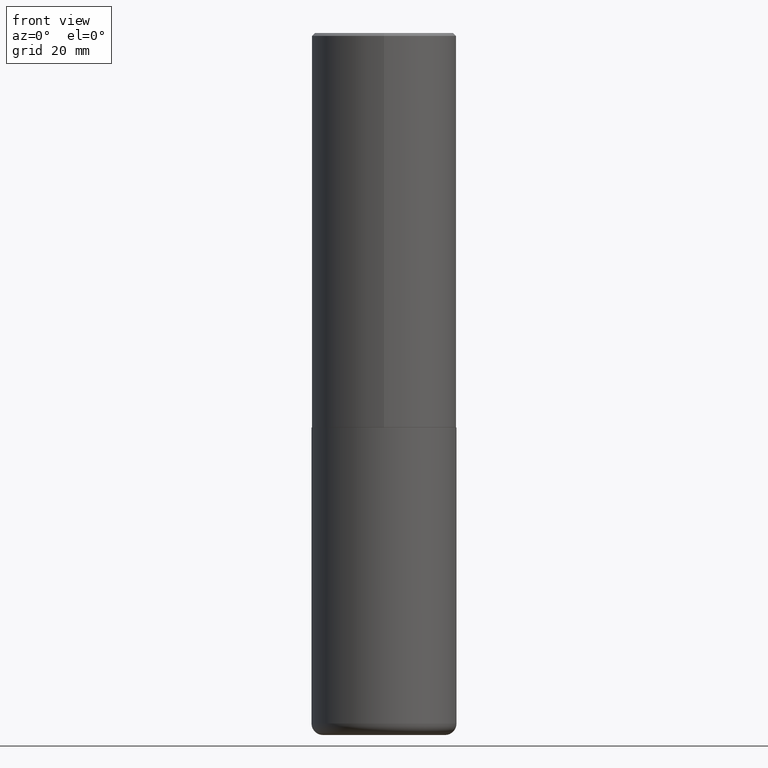
[diagram: clean part render]
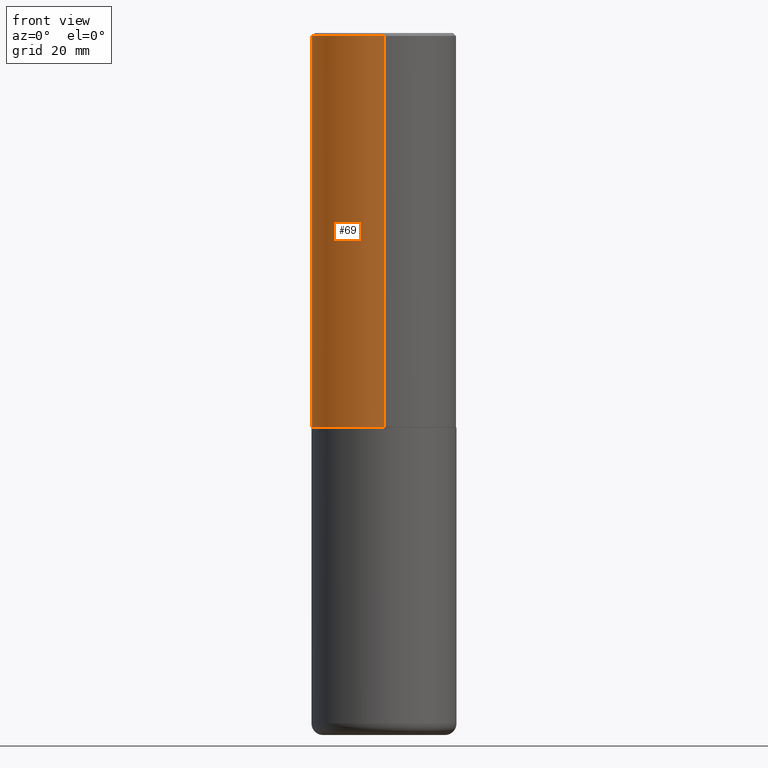
[diagram: same view with one face highlighted and labeled with its STEP entity id]
A machine part, front view. The second image highlights one B-rep face of the part: STEP entity #69.
In plain terms, the highlighted cylindrical surface (partial cylindrical patch) has radius 12.5006 mm, axis along (-0, 0, 1).
Its self-contained STEP definition (entity closure, byte-faithful):
#1 = LINE ( 'NONE', #129, #92 ) ;
#4 = VECTOR ( 'NONE', #287, 39.37007874015748143 ) ;
#44 = DIRECTION ( 'NONE',  ( -2.447117958567619178E-29, 3.489119658767506053E-15, 1.000000000000000000 ) ) ;
#46 = AXIS2_PLACEMENT_3D ( 'NONE', #350, #413, #115 ) ;
#53 = EDGE_CURVE ( 'NONE', #204, #135, #412, .T. ) ;
#69 = ADVANCED_FACE ( 'NONE', ( #407 ), #251, .T. ) ;
#81 = ORIENTED_EDGE ( 'NONE', *, *, #167, .F. ) ;
#92 = VECTOR ( 'NONE', #165, 39.37007874015748143 ) ;
#115 = DIRECTION ( 'NONE',  ( -6.982962677686265922E-15, -1.000000000000000000, 3.489119658767506053E-15 ) ) ;
#120 = AXIS2_PLACEMENT_3D ( 'NONE', #266, #403, #396 ) ;
#129 = CARTESIAN_POINT ( 'NONE',  ( 3.496936074043333291E-15, 0.4921500000000000874, -1.717170240062428491E-15 ) ) ;
#135 = VERTEX_POINT ( 'NONE', #258 ) ;
#137 = CARTESIAN_POINT ( 'NONE',  ( 4.894235917135264524E-31, -6.978239317535049922E-17, -0.02000000000000010797 ) ) ;
#138 = VERTEX_POINT ( 'NONE', #225 ) ;
#165 = DIRECTION ( 'NONE',  ( -2.447117958567619178E-29, 3.489119658767506053E-15, 1.000000000000000000 ) ) ;
#167 = EDGE_CURVE ( 'NONE', #174, #138, #1, .T. ) ;
#174 = VERTEX_POINT ( 'NONE', #354 ) ;
#177 = DIRECTION ( 'NONE',  ( -6.982962677686265922E-15, -1.000000000000000000, 3.486624039460257331E-15 ) ) ;
#184 = AXIS2_PLACEMENT_3D ( 'NONE', #137, #44, #177 ) ;
#204 = VERTEX_POINT ( 'NONE', #254 ) ;
#220 = CARTESIAN_POINT ( 'NONE',  ( -3.436665081823296565E-15, -0.4921500000000000874, 1.717170240062428491E-15 ) ) ;
#225 = CARTESIAN_POINT ( 'NONE',  ( 3.436665081823295777E-15, 0.4921499999999998098, -0.02000000000000182188 ) ) ;
#251 = CYLINDRICAL_SURFACE ( 'NONE', #46, 0.4921500000000000874 ) ;
#254 = CARTESIAN_POINT ( 'NONE',  ( -3.436665081823232273E-15, -0.4921500000000095798, -2.676199999999997914 ) ) ;
#258 = CARTESIAN_POINT ( 'NONE',  ( -3.376394089603257868E-15, -0.4921499999999999764, -0.01999999999999839059 ) ) ;
#266 = CARTESIAN_POINT ( 'NONE',  ( 6.548977080718662055E-29, -9.337582030793598206E-15, -2.676199999999999690 ) ) ;
#278 = CIRCLE ( 'NONE', #120, 0.4921500000000002539 ) ;
#287 = DIRECTION ( 'NONE',  ( -2.447117958567619178E-29, 3.489119658767506053E-15, 1.000000000000000000 ) ) ;
#305 = EDGE_LOOP ( 'NONE', ( #81, #397, #340, #314 ) ) ;
#314 = ORIENTED_EDGE ( 'NONE', *, *, #346, .F. ) ;
#340 = ORIENTED_EDGE ( 'NONE', *, *, #53, .T. ) ;
#346 = EDGE_CURVE ( 'NONE', #138, #135, #360, .T. ) ;
#350 = CARTESIAN_POINT ( 'NONE',  ( 0.000000000000000000, 0.000000000000000000, 0.000000000000000000 ) ) ;
#354 = CARTESIAN_POINT ( 'NONE',  ( 3.496936074043367212E-15, 0.4921499999999909281, -2.676200000000001467 ) ) ;
#360 = CIRCLE ( 'NONE', #184, 0.4921499999999999209 ) ;
#385 = EDGE_CURVE ( 'NONE', #174, #204, #278, .T. ) ;
#396 = DIRECTION ( 'NONE',  ( -6.982962677686266711E-15, -1.000000000000000000, 3.330506545156064285E-15 ) ) ;
#397 = ORIENTED_EDGE ( 'NONE', *, *, #385, .T. ) ;
#403 = DIRECTION ( 'NONE',  ( -2.447117958567619178E-29, 3.489119658767506053E-15, 1.000000000000000000 ) ) ;
#407 = FACE_OUTER_BOUND ( 'NONE', #305, .T. ) ;
#412 = LINE ( 'NONE', #220, #4 ) ;
#413 = DIRECTION ( 'NONE',  ( -2.447117958567619178E-29, 3.489119658767506053E-15, 1.000000000000000000 ) ) ;